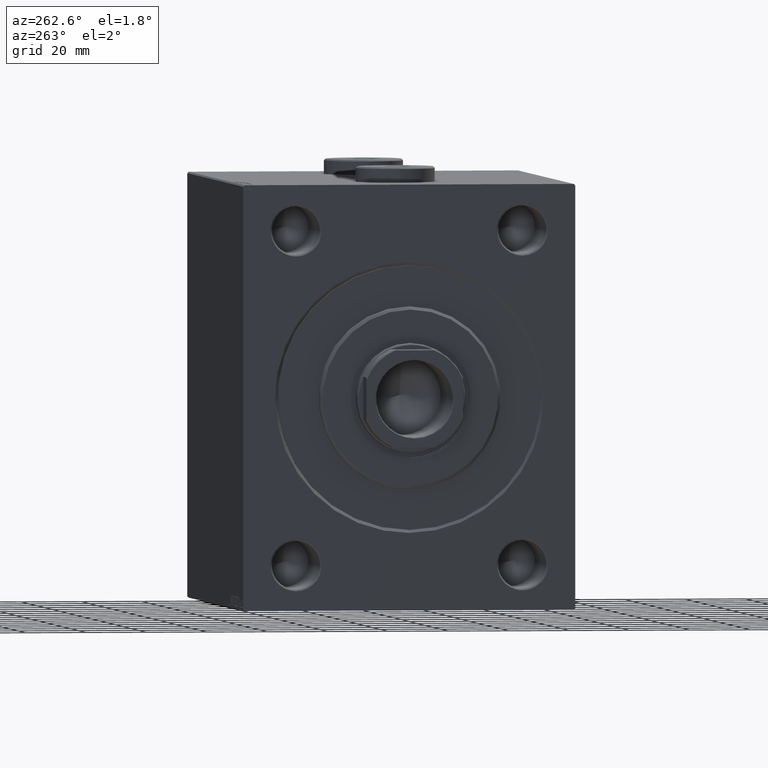
[diagram: clean part render]
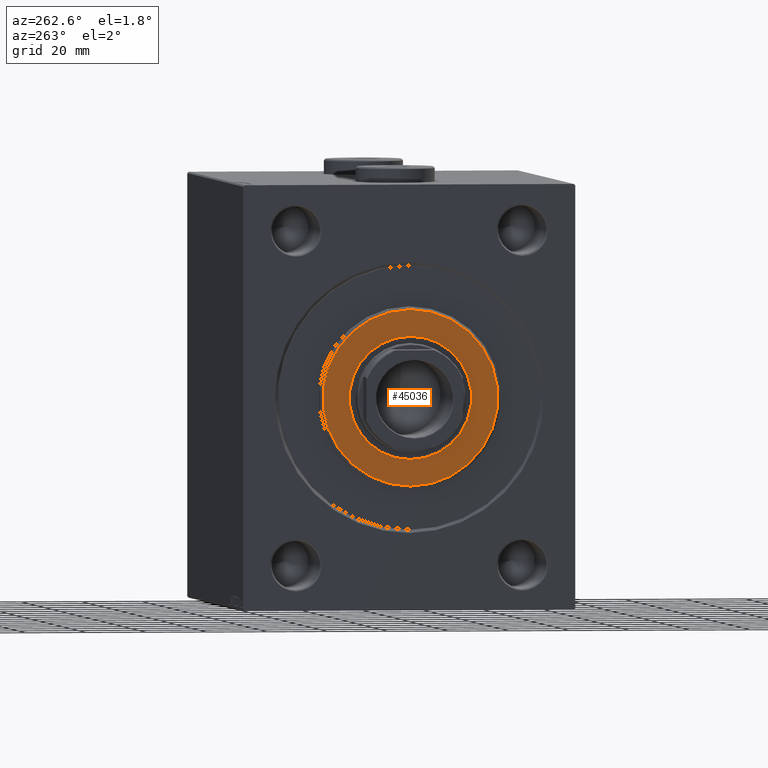
[diagram: same view with one face highlighted and labeled with its STEP entity id]
A machine part, auxiliary view. The second image highlights one B-rep face of the part: STEP entity #45036.
In plain terms, the highlighted planar face has unit normal (-1, 0, 0).
Its self-contained STEP definition (entity closure, byte-faithful):
#255 = VERTEX_POINT ( 'NONE', #15439 ) ;
#789 = DIRECTION ( 'NONE',  ( 0.000000000000000000, 0.000000000000000000, -1.000000000000000000 ) ) ;
#1220 = CARTESIAN_POINT ( 'NONE',  ( 3.000000000000000000, 0.000000000000000000, 28.99999999999999289 ) ) ;
#1449 = EDGE_LOOP ( 'NONE', ( #44971, #36276 ) ) ;
#2811 = CARTESIAN_POINT ( 'NONE',  ( 3.000000000000000000, 0.000000000000000000, 0.000000000000000000 ) ) ;
#4649 = ORIENTED_EDGE ( 'NONE', *, *, #12908, .T. ) ;
#4922 = CARTESIAN_POINT ( 'NONE',  ( 3.000000000000000000, 0.000000000000000000, -20.25000000000000000 ) ) ;
#5544 = AXIS2_PLACEMENT_3D ( 'NONE', #2811, #12984, #31206 ) ;
#7150 = EDGE_CURVE ( 'NONE', #255, #44952, #30820, .T. ) ;
#7628 = AXIS2_PLACEMENT_3D ( 'NONE', #42385, #17892, #789 ) ;
#8980 = DIRECTION ( 'NONE',  ( 0.000000000000000000, 0.000000000000000000, -1.000000000000000000 ) ) ;
#12124 = DIRECTION ( 'NONE',  ( 0.000000000000000000, 0.000000000000000000, -1.000000000000000000 ) ) ;
#12531 = CIRCLE ( 'NONE', #30977, 28.99999999999999289 ) ;
#12908 = EDGE_CURVE ( 'NONE', #15730, #18107, #12531, .T. ) ;
#12984 = DIRECTION ( 'NONE',  ( 1.000000000000000000, -0.000000000000000000, 0.000000000000000000 ) ) ;
#13769 = EDGE_LOOP ( 'NONE', ( #21909, #4649 ) ) ;
#15439 = CARTESIAN_POINT ( 'NONE',  ( 3.000000000000000000, 2.479909768273390300E-15, 20.25000000000000000 ) ) ;
#15730 = VERTEX_POINT ( 'NONE', #17136 ) ;
#15929 = DIRECTION ( 'NONE',  ( 1.000000000000000000, 0.000000000000000000, 0.000000000000000000 ) ) ;
#16146 = CARTESIAN_POINT ( 'NONE',  ( 3.000000000000000000, 0.000000000000000000, 0.000000000000000000 ) ) ;
#17136 = CARTESIAN_POINT ( 'NONE',  ( 3.000000000000000000, 3.612708057484691604E-15, -28.99999999999999289 ) ) ;
#17892 = DIRECTION ( 'NONE',  ( 1.000000000000000000, -0.000000000000000000, 0.000000000000000000 ) ) ;
#18107 = VERTEX_POINT ( 'NONE', #1220 ) ;
#19729 = EDGE_CURVE ( 'NONE', #44952, #255, #34859, .T. ) ;
#20137 = FACE_BOUND ( 'NONE', #1449, .T. ) ;
#20587 = FACE_OUTER_BOUND ( 'NONE', #13769, .T. ) ;
#21909 = ORIENTED_EDGE ( 'NONE', *, *, #41002, .T. ) ;
#23088 = AXIS2_PLACEMENT_3D ( 'NONE', #30432, #44542, #8980 ) ;
#23206 = CARTESIAN_POINT ( 'NONE',  ( 3.000000000000000000, 0.000000000000000000, 0.000000000000000000 ) ) ;
#26798 = CIRCLE ( 'NONE', #7628, 28.99999999999999289 ) ;
#29556 = DIRECTION ( 'NONE',  ( 0.000000000000000000, 0.000000000000000000, -1.000000000000000000 ) ) ;
#30432 = CARTESIAN_POINT ( 'NONE',  ( 3.000000000000000000, 0.000000000000000000, 0.000000000000000000 ) ) ;
#30820 = CIRCLE ( 'NONE', #30854, 20.25000000000000000 ) ;
#30854 = AXIS2_PLACEMENT_3D ( 'NONE', #16146, #15929, #29556 ) ;
#30977 = AXIS2_PLACEMENT_3D ( 'NONE', #23206, #40306, #12124 ) ;
#31206 = DIRECTION ( 'NONE',  ( 0.000000000000000000, 0.000000000000000000, -1.000000000000000000 ) ) ;
#34859 = CIRCLE ( 'NONE', #23088, 20.25000000000000000 ) ;
#36276 = ORIENTED_EDGE ( 'NONE', *, *, #7150, .F. ) ;
#37913 = PLANE ( 'NONE',  #5544 ) ;
#40306 = DIRECTION ( 'NONE',  ( 1.000000000000000000, -0.000000000000000000, 0.000000000000000000 ) ) ;
#41002 = EDGE_CURVE ( 'NONE', #18107, #15730, #26798, .T. ) ;
#42385 = CARTESIAN_POINT ( 'NONE',  ( 3.000000000000000000, 0.000000000000000000, 0.000000000000000000 ) ) ;
#44542 = DIRECTION ( 'NONE',  ( 1.000000000000000000, 0.000000000000000000, 0.000000000000000000 ) ) ;
#44952 = VERTEX_POINT ( 'NONE', #4922 ) ;
#44971 = ORIENTED_EDGE ( 'NONE', *, *, #19729, .F. ) ;
#45036 = ADVANCED_FACE ( 'NONE', ( #20587, #20137 ), #37913, .T. ) ;